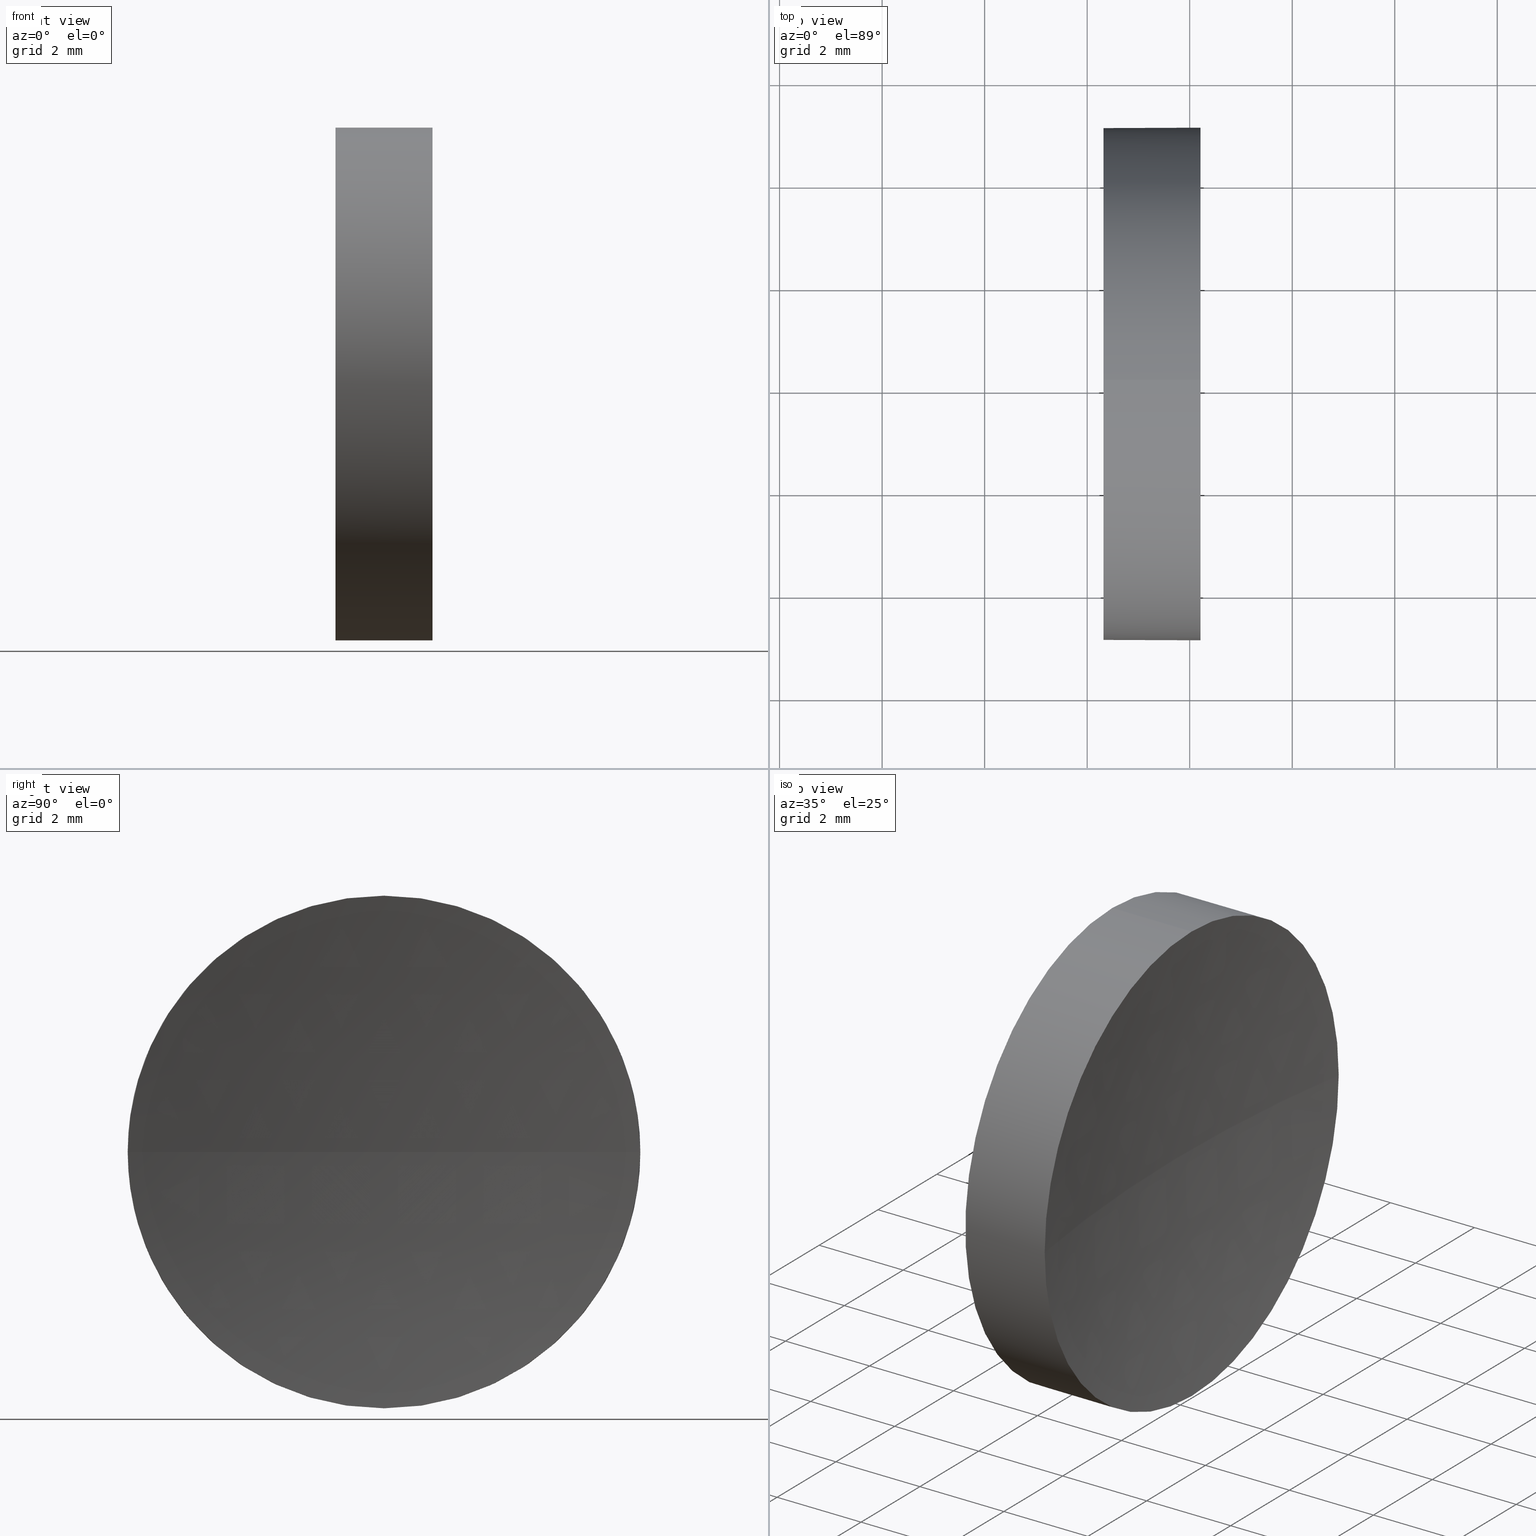
[diagram: canonical four-view strip — front | top / right | iso, engineering-drawing reading convention]
A machine part, canonical four-view strip (front | top / right | iso — engineering-drawing reading convention). The complete STEP part file that produces these views, byte-faithful:
ISO-10303-21;
HEADER;
FILE_DESCRIPTION (( 'STEP AP214' ),
    '1' );
FILE_NAME ('120017.STEP',
    '2019-06-14T06:06:03',
    ( '' ),
    ( '' ),
    'SwSTEP 2.0',
    'SolidWorks 2016',
    '' );
FILE_SCHEMA (( 'AUTOMOTIVE_DESIGN' ));
ENDSEC;

DATA;
#1 = ORIENTED_EDGE ( 'NONE', *, *, #173, .T. ) ;
#2 = CARTESIAN_POINT ( 'NONE',  ( 78.06586459440524100, 26.08904114919495900, 0.0000000000000000000 ) ) ;
#3 = DIRECTION ( 'NONE',  ( 0.0000000000000000000, 0.0000000000000000000, 1.000000000000000000 ) ) ;
#4 = DIRECTION ( 'NONE',  ( 0.0000000000000000000, 0.0000000000000000000, 1.000000000000000000 ) ) ;
#5 = PRODUCT_DEFINITION_SHAPE ( 'NONE', 'NONE',  #95 ) ;
#6 = SURFACE_STYLE_FILL_AREA ( #140 ) ;
#7 = COLOUR_RGB ( '',1.000000000000000000, 1.000000000000000000, 1.000000000000000000 ) ;
#8 = VERTEX_POINT ( 'NONE', #16 ) ;
#9 = ORIENTED_EDGE ( 'NONE', *, *, #55, .T. ) ;
#10 = UNCERTAINTY_MEASURE_WITH_UNIT (LENGTH_MEASURE( 1.000000000000000100E-005 ), #35, 'distance_accuracy_value', 'NONE');
#11 = APPLICATION_CONTEXT ( 'automotive_design' ) ;
#12 = FACE_OUTER_BOUND ( 'NONE', #31, .T. ) ;
#13 = COLOUR_RGB ( '',1.000000000000000000, 1.000000000000000000, 1.000000000000000000 ) ;
#14 = DIRECTION ( 'NONE',  ( -1.000000000000000000, -0.0000000000000000000, -0.0000000000000000000 ) ) ;
#15 = EDGE_CURVE ( 'NONE', #29, #121, #186, .T. ) ;
#16 = CARTESIAN_POINT ( 'NONE',  ( 45.81958546217385500, 26.08904114919495500, 0.0000000000000000000 ) ) ;
#17 = CLOSED_SHELL ( 'NONE', ( #90, #158, #170, #167, #58 ) ) ;
#18 = FACE_OUTER_BOUND ( 'NONE', #77, .T. ) ;
#19 = ORIENTED_EDGE ( 'NONE', *, *, #111, .F. ) ;
#20 = DIRECTION ( 'NONE',  ( -1.000000000000000000, -0.0000000000000000000, -0.0000000000000000000 ) ) ;
#21 = DIRECTION ( 'NONE',  ( 0.0000000000000000000, -1.000000000000000000, 0.0000000000000000000 ) ) ;
#22 = CARTESIAN_POINT ( 'NONE',  ( 42.44986111413682300, 26.08904114919495900, 0.0000000000000000000 ) ) ;
#23 =( NAMED_UNIT ( * ) PLANE_ANGLE_UNIT ( ) SI_UNIT ( $, .RADIAN. ) );
#24 = AXIS2_PLACEMENT_3D ( 'NONE', #65, #137, #46 ) ;
#25 =( NAMED_UNIT ( * ) SI_UNIT ( $, .STERADIAN. ) SOLID_ANGLE_UNIT ( ) );
#26 = AXIS2_PLACEMENT_3D ( 'NONE', #79, #3, #21 ) ;
#27 = CARTESIAN_POINT ( 'NONE',  ( 46.20958549791029700, 26.08904114919495900, 0.0000000000000000000 ) ) ;
#28 = CARTESIAN_POINT ( 'NONE',  ( 42.44986111413682300, 26.08904114919495900, -5.000000000000000900 ) ) ;
#29 = VERTEX_POINT ( 'NONE', #131 ) ;
#30 = FACE_OUTER_BOUND ( 'NONE', #67, .T. ) ;
#31 = EDGE_LOOP ( 'NONE', ( #149, #166, #178, #1 ) ) ;
#32 = AXIS2_PLACEMENT_3D ( 'NONE', #124, #38, #92 ) ;
#33 = ORIENTED_EDGE ( 'NONE', *, *, #15, .F. ) ;
#34 = CARTESIAN_POINT ( 'NONE',  ( 46.20958549791029700, 31.08904114919497300, 6.123233995736783000E-016 ) ) ;
#35 =( LENGTH_UNIT ( ) NAMED_UNIT ( * ) SI_UNIT ( .MILLI., .METRE. ) );
#36 =( LENGTH_UNIT ( ) NAMED_UNIT ( * ) SI_UNIT ( .MILLI., .METRE. ) );
#37 = EDGE_LOOP ( 'NONE', ( #33, #164, #156, #66, #134 ) ) ;
#38 = DIRECTION ( 'NONE',  ( -1.000000000000000000, -0.0000000000000000000, -0.0000000000000000000 ) ) ;
#39 =( GEOMETRIC_REPRESENTATION_CONTEXT ( 3 ) GLOBAL_UNCERTAINTY_ASSIGNED_CONTEXT ( ( #10 ) ) GLOBAL_UNIT_ASSIGNED_CONTEXT ( ( #35, #23, #179 ) ) REPRESENTATION_CONTEXT ( 'NONE', 'WORKASPACE' ) );
#40 = DIRECTION ( 'NONE',  ( -1.000000000000000000, -0.0000000000000000000, -0.0000000000000000000 ) ) ;
#41 = AXIS2_PLACEMENT_3D ( 'NONE', #27, #14, #130 ) ;
#42 = DIRECTION ( 'NONE',  ( 0.0000000000000000000, 0.0000000000000000000, 1.000000000000000000 ) ) ;
#43 = CARTESIAN_POINT ( 'NONE',  ( 44.31958549791029600, 26.08904114919495900, 0.0000000000000000000 ) ) ;
#44 = ORIENTED_EDGE ( 'NONE', *, *, #177, .T. ) ;
#45 = AXIS2_PLACEMENT_3D ( 'NONE', #2, #138, #61 ) ;
#46 = DIRECTION ( 'NONE',  ( 0.0000000000000000000, -1.000000000000000000, -1.224646799147353200E-016 ) ) ;
#47 = EDGE_CURVE ( 'NONE', #183, #59, #99, .T. ) ;
#48 = DIRECTION ( 'NONE',  ( -1.000000000000000000, -0.0000000000000000000, -0.0000000000000000000 ) ) ;
#49 = CARTESIAN_POINT ( 'NONE',  ( 0.0000000000000000000, 0.0000000000000000000, 0.0000000000000000000 ) ) ;
#50 = VECTOR ( 'NONE', #185, 1000.000000000000000 ) ;
#51 = CARTESIAN_POINT ( 'NONE',  ( 44.31958549791029600, 26.08904114919495900, -5.000000000000000900 ) ) ;
#52 = EDGE_CURVE ( 'NONE', #112, #183, #181, .T. ) ;
#53 = DIRECTION ( 'NONE',  ( 0.0000000000000000000, 0.0000000000000000000, 1.000000000000000000 ) ) ;
#54 = CARTESIAN_POINT ( 'NONE',  ( 42.44986111413682300, 26.08904114919495900, 5.000000000000000900 ) ) ;
#55 = EDGE_CURVE ( 'NONE', #183, #71, #60, .T. ) ;
#56 = DIRECTION ( 'NONE',  ( -1.000000000000000000, -0.0000000000000000000, -0.0000000000000000000 ) ) ;
#57 = EDGE_CURVE ( 'NONE', #29, #112, #68, .T. ) ;
#58 = ADVANCED_FACE ( 'NONE', ( #30 ), #142, .F. ) ;
#59 = VERTEX_POINT ( 'NONE', #150 ) ;
#60 = CIRCLE ( 'NONE', #70, 5.000000000000000900 ) ;
#61 = DIRECTION ( 'NONE',  ( 0.0000000000000000000, -1.000000000000000000, 0.0000000000000000000 ) ) ;
#62 = CARTESIAN_POINT ( 'NONE',  ( 44.31958549791029600, 26.08904114919495900, 0.0000000000000000000 ) ) ;
#63 = STYLED_ITEM ( 'NONE', ( #100 ), #147 ) ;
#64 = DIRECTION ( 'NONE',  ( 0.0000000000000000000, 0.0000000000000000000, 1.000000000000000000 ) ) ;
#65 = CARTESIAN_POINT ( 'NONE',  ( 78.06586459440524100, 26.08904114919495900, 0.0000000000000000000 ) ) ;
#66 = ORIENTED_EDGE ( 'NONE', *, *, #47, .T. ) ;
#67 = EDGE_LOOP ( 'NONE', ( #44, #144 ) ) ;
#68 = CIRCLE ( 'NONE', #136, 5.000000000000000900 ) ;
#69 = AXIS2_PLACEMENT_3D ( 'NONE', #22, #20, #104 ) ;
#70 = AXIS2_PLACEMENT_3D ( 'NONE', #143, #56, #113 ) ;
#71 = VERTEX_POINT ( 'NONE', #34 ) ;
#72 = ORIENTED_EDGE ( 'NONE', *, *, #15, .T. ) ;
#73 = PRODUCT_DEFINITION_CONTEXT ( 'detailed design', #109, 'design' ) ;
#74 = CIRCLE ( 'NONE', #24, 32.24627913223138600 ) ;
#75 = FACE_OUTER_BOUND ( 'NONE', #37, .T. ) ;
#76 = CYLINDRICAL_SURFACE ( 'NONE', #123, 5.000000000000000900 ) ;
#77 = EDGE_LOOP ( 'NONE', ( #172, #72, #145, #107, #9 ) ) ;
#78 = FILL_AREA_STYLE ('',( #94 ) ) ;
#79 = CARTESIAN_POINT ( 'NONE',  ( 78.06586459440524100, 26.08904114919495900, 0.0000000000000000000 ) ) ;
#80 = CARTESIAN_POINT ( 'NONE',  ( 78.06586459440524100, 26.08904114919495900, 0.0000000000000000000 ) ) ;
#81 = DIRECTION ( 'NONE',  ( -1.000000000000000000, -0.0000000000000000000, -0.0000000000000000000 ) ) ;
#82 = SURFACE_SIDE_STYLE ('',( #87 ) ) ;
#83 = SURFACE_SIDE_STYLE ('',( #6 ) ) ;
#84 = UNCERTAINTY_MEASURE_WITH_UNIT (LENGTH_MEASURE( 1.000000000000000100E-005 ), #184, 'distance_accuracy_value', 'NONE');
#85 = SPHERICAL_SURFACE ( 'NONE', #26, 32.24627913223138600 ) ;
#86 = APPLICATION_PROTOCOL_DEFINITION ( 'draft international standard', 'automotive_design', 1998, #11 ) ;
#87 = SURFACE_STYLE_FILL_AREA ( #78 ) ;
#88 = PRESENTATION_LAYER_ASSIGNMENT (  '', '', ( #63 ) ) ;
#89 = AXIS2_PLACEMENT_3D ( 'NONE', #62, #40, #53 ) ;
#90 = ADVANCED_FACE ( 'NONE', ( #18 ), #76, .T. ) ;
#91 = CIRCLE ( 'NONE', #128, 5.000000000000000900 ) ;
#92 = DIRECTION ( 'NONE',  ( 0.0000000000000000000, 0.0000000000000000000, 1.000000000000000000 ) ) ;
#93 = CARTESIAN_POINT ( 'NONE',  ( 46.20958549791029700, 26.08904114919495900, 0.0000000000000000000 ) ) ;
#94 = FILL_AREA_STYLE_COLOUR ( '', #7 ) ;
#95 = PRODUCT_DEFINITION ( 'δ֪', '', #127, #73 ) ;
#96 =( NAMED_UNIT ( * ) PLANE_ANGLE_UNIT ( ) SI_UNIT ( $, .RADIAN. ) );
#97 = SURFACE_STYLE_USAGE ( .BOTH. , #83 ) ;
#98 = PRESENTATION_STYLE_ASSIGNMENT (( #97 ) ) ;
#99 = LINE ( 'NONE', #54, #155 ) ;
#100 = PRESENTATION_STYLE_ASSIGNMENT (( #174 ) ) ;
#101 = ORIENTED_EDGE ( 'NONE', *, *, #103, .T. ) ;
#102 = AXIS2_PLACEMENT_3D ( 'NONE', #80, #176, #105 ) ;
#103 = EDGE_CURVE ( 'NONE', #71, #8, #74, .T. ) ;
#104 = DIRECTION ( 'NONE',  ( 0.0000000000000000000, 0.0000000000000000000, 1.000000000000000000 ) ) ;
#105 = DIRECTION ( 'NONE',  ( -1.000000000000000000, 0.0000000000000000000, 0.0000000000000000000 ) ) ;
#106 = CARTESIAN_POINT ( 'NONE',  ( 46.20958549791029700, 26.08904114919495900, 0.0000000000000000000 ) ) ;
#107 = ORIENTED_EDGE ( 'NONE', *, *, #47, .F. ) ;
#108 = DIRECTION ( 'NONE',  ( 1.000000000000000000, 0.0000000000000000000, 0.0000000000000000000 ) ) ;
#109 = APPLICATION_CONTEXT ( 'automotive_design' ) ;
#110 = CIRCLE ( 'NONE', #102, 32.24627913223138600 ) ;
#111 = EDGE_CURVE ( 'NONE', #71, #29, #91, .T. ) ;
#112 = VERTEX_POINT ( 'NONE', #162 ) ;
#113 = DIRECTION ( 'NONE',  ( 0.0000000000000000000, 0.0000000000000000000, 1.000000000000000000 ) ) ;
#114 = MECHANICAL_DESIGN_GEOMETRIC_PRESENTATION_REPRESENTATION (  '', ( #119 ), #146 ) ;
#115 = PRESENTATION_LAYER_ASSIGNMENT (  '', '', ( #119 ) ) ;
#116 = ADVANCED_BREP_SHAPE_REPRESENTATION ( '120017', ( #147, #151 ), #133 ) ;
#117 = EDGE_CURVE ( 'NONE', #121, #59, #132, .T. ) ;
#118 = CYLINDRICAL_SURFACE ( 'NONE', #69, 5.000000000000000900 ) ;
#119 = STYLED_ITEM ( 'NONE', ( #98 ), #116 ) ;
#120 = FILL_AREA_STYLE_COLOUR ( '', #13 ) ;
#121 = VERTEX_POINT ( 'NONE', #51 ) ;
#122 = DIRECTION ( 'NONE',  ( 1.000000000000000000, 0.0000000000000000000, 0.0000000000000000000 ) ) ;
#123 = AXIS2_PLACEMENT_3D ( 'NONE', #148, #48, #64 ) ;
#124 = CARTESIAN_POINT ( 'NONE',  ( 44.31958549791029600, 26.08904114919495900, 0.0000000000000000000 ) ) ;
#125 = PRODUCT_CONTEXT ( 'NONE', #11, 'mechanical' ) ;
#126 =( NAMED_UNIT ( * ) PLANE_ANGLE_UNIT ( ) SI_UNIT ( $, .RADIAN. ) );
#127 = PRODUCT_DEFINITION_FORMATION_WITH_SPECIFIED_SOURCE ( '�κ�', '', #153, .NOT_KNOWN. ) ;
#128 = AXIS2_PLACEMENT_3D ( 'NONE', #93, #175, #161 ) ;
#129 = DIRECTION ( 'NONE',  ( -1.000000000000000000, -0.0000000000000000000, -0.0000000000000000000 ) ) ;
#130 = DIRECTION ( 'NONE',  ( 0.0000000000000000000, 0.0000000000000000000, 1.000000000000000000 ) ) ;
#131 = CARTESIAN_POINT ( 'NONE',  ( 46.20958549791029700, 26.08904114919495900, -5.000000000000000900 ) ) ;
#132 = CIRCLE ( 'NONE', #32, 5.000000000000000900 ) ;
#133 =( GEOMETRIC_REPRESENTATION_CONTEXT ( 3 ) GLOBAL_UNCERTAINTY_ASSIGNED_CONTEXT ( ( #182 ) ) GLOBAL_UNIT_ASSIGNED_CONTEXT ( ( #36, #96, #25 ) ) REPRESENTATION_CONTEXT ( 'NONE', 'WORKASPACE' ) );
#134 = ORIENTED_EDGE ( 'NONE', *, *, #117, .F. ) ;
#135 = MECHANICAL_DESIGN_GEOMETRIC_PRESENTATION_REPRESENTATION (  '', ( #63 ), #39 ) ;
#136 = AXIS2_PLACEMENT_3D ( 'NONE', #106, #81, #4 ) ;
#137 = DIRECTION ( 'NONE',  ( 0.0000000000000000000, -1.224646799147353200E-016, 1.000000000000000000 ) ) ;
#138 = DIRECTION ( 'NONE',  ( 0.0000000000000000000, 0.0000000000000000000, 1.000000000000000000 ) ) ;
#139 = ORIENTED_EDGE ( 'NONE', *, *, #57, .F. ) ;
#140 = FILL_AREA_STYLE ('',( #120 ) ) ;
#141 = APPLICATION_PROTOCOL_DEFINITION ( 'draft international standard', 'automotive_design', 1998, #109 ) ;
#142 = PLANE ( 'NONE',  #169 ) ;
#143 = CARTESIAN_POINT ( 'NONE',  ( 46.20958549791029700, 26.08904114919495900, 0.0000000000000000000 ) ) ;
#144 = ORIENTED_EDGE ( 'NONE', *, *, #117, .T. ) ;
#145 = ORIENTED_EDGE ( 'NONE', *, *, #177, .F. ) ;
#146 =( GEOMETRIC_REPRESENTATION_CONTEXT ( 3 ) GLOBAL_UNCERTAINTY_ASSIGNED_CONTEXT ( ( #84 ) ) GLOBAL_UNIT_ASSIGNED_CONTEXT ( ( #184, #126, #152 ) ) REPRESENTATION_CONTEXT ( 'NONE', 'WORKASPACE' ) );
#147 = MANIFOLD_SOLID_BREP ( '��ת1', #17 ) ;
#148 = CARTESIAN_POINT ( 'NONE',  ( 42.44986111413682300, 26.08904114919495900, 0.0000000000000000000 ) ) ;
#149 = ORIENTED_EDGE ( 'NONE', *, *, #103, .F. ) ;
#150 = CARTESIAN_POINT ( 'NONE',  ( 44.31958549791029600, 26.08904114919495900, 5.000000000000000900 ) ) ;
#151 = AXIS2_PLACEMENT_3D ( 'NONE', #49, #42, #108 ) ;
#152 =( NAMED_UNIT ( * ) SI_UNIT ( $, .STERADIAN. ) SOLID_ANGLE_UNIT ( ) );
#153 = PRODUCT ( '120017', '120017', '', ( #125 ) ) ;
#154 = SPHERICAL_SURFACE ( 'NONE', #45, 32.24627913223138600 ) ;
#155 = VECTOR ( 'NONE', #129, 1000.000000000000000 ) ;
#156 = ORIENTED_EDGE ( 'NONE', *, *, #52, .T. ) ;
#157 = CIRCLE ( 'NONE', #89, 5.000000000000000900 ) ;
#158 = ADVANCED_FACE ( 'NONE', ( #168 ), #154, .F. ) ;
#159 = DIRECTION ( 'NONE',  ( 0.0000000000000000000, 0.0000000000000000000, -1.000000000000000000 ) ) ;
#160 = CARTESIAN_POINT ( 'NONE',  ( 46.20958549791029700, 26.08904114919495900, 5.000000000000000900 ) ) ;
#161 = DIRECTION ( 'NONE',  ( 0.0000000000000000000, 0.0000000000000000000, 1.000000000000000000 ) ) ;
#162 = CARTESIAN_POINT ( 'NONE',  ( 46.20958549791029700, 21.08904114919494400, 0.0000000000000000000 ) ) ;
#163 = SHAPE_DEFINITION_REPRESENTATION ( #5, #116 ) ;
#164 = ORIENTED_EDGE ( 'NONE', *, *, #57, .T. ) ;
#165 = PRODUCT_RELATED_PRODUCT_CATEGORY ( 'part', '', ( #153 ) ) ;
#166 = ORIENTED_EDGE ( 'NONE', *, *, #55, .F. ) ;
#167 = ADVANCED_FACE ( 'NONE', ( #75 ), #118, .T. ) ;
#168 = FACE_OUTER_BOUND ( 'NONE', #171, .T. ) ;
#169 = AXIS2_PLACEMENT_3D ( 'NONE', #43, #122, #159 ) ;
#170 = ADVANCED_FACE ( 'NONE', ( #12 ), #85, .F. ) ;
#171 = EDGE_LOOP ( 'NONE', ( #19, #101, #180, #139 ) ) ;
#172 = ORIENTED_EDGE ( 'NONE', *, *, #111, .T. ) ;
#173 = EDGE_CURVE ( 'NONE', #112, #8, #110, .T. ) ;
#174 = SURFACE_STYLE_USAGE ( .BOTH. , #82 ) ;
#175 = DIRECTION ( 'NONE',  ( -1.000000000000000000, -0.0000000000000000000, -0.0000000000000000000 ) ) ;
#176 = DIRECTION ( 'NONE',  ( 0.0000000000000000000, 0.0000000000000000000, -1.000000000000000000 ) ) ;
#177 = EDGE_CURVE ( 'NONE', #59, #121, #157, .T. ) ;
#178 = ORIENTED_EDGE ( 'NONE', *, *, #52, .F. ) ;
#179 =( NAMED_UNIT ( * ) SI_UNIT ( $, .STERADIAN. ) SOLID_ANGLE_UNIT ( ) );
#180 = ORIENTED_EDGE ( 'NONE', *, *, #173, .F. ) ;
#181 = CIRCLE ( 'NONE', #41, 5.000000000000000900 ) ;
#182 = UNCERTAINTY_MEASURE_WITH_UNIT (LENGTH_MEASURE( 1.000000000000000100E-005 ), #36, 'distance_accuracy_value', 'NONE');
#183 = VERTEX_POINT ( 'NONE', #160 ) ;
#184 =( LENGTH_UNIT ( ) NAMED_UNIT ( * ) SI_UNIT ( .MILLI., .METRE. ) );
#185 = DIRECTION ( 'NONE',  ( -1.000000000000000000, -0.0000000000000000000, -0.0000000000000000000 ) ) ;
#186 = LINE ( 'NONE', #28, #50 ) ;
ENDSEC;
END-ISO-10303-21;
